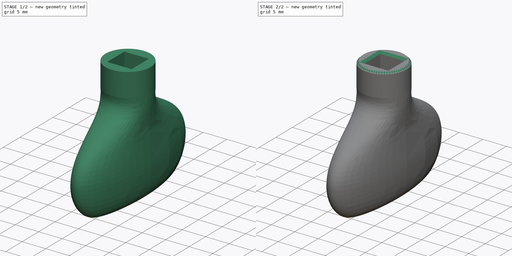
[diagram: build sequence overview — one tinted view per stage of 2, left to right]
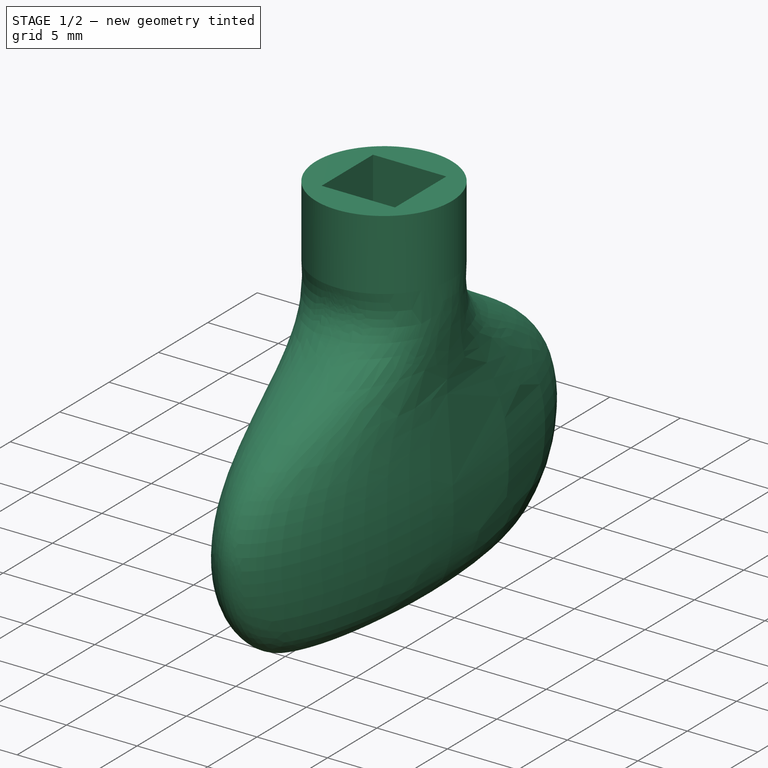
[diagram: stage 1 of 2 — iso view after this stage's code; geometry added in this stage tinted green]
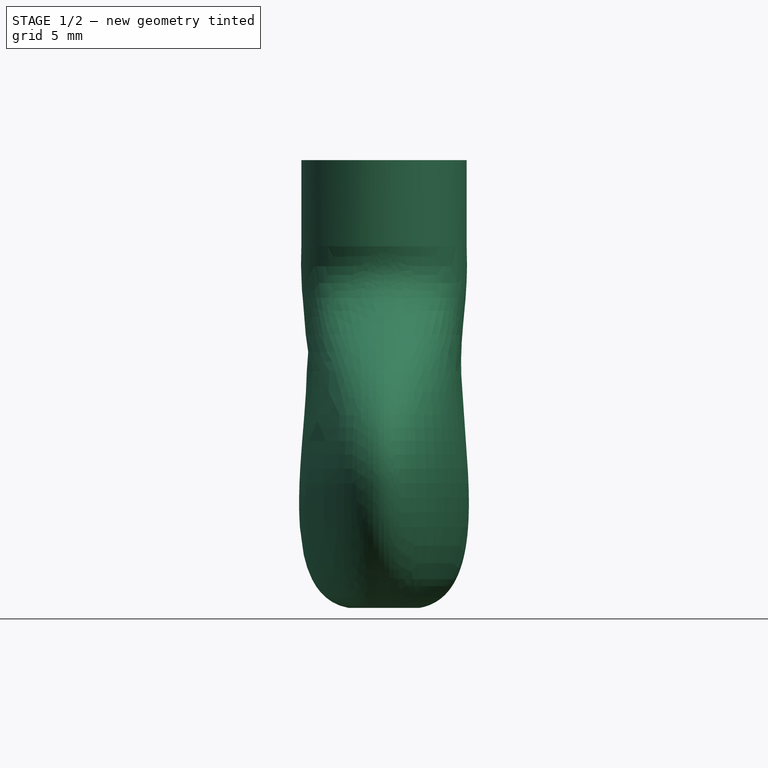
[diagram: stage 1 of 2 — front view after this stage's code; geometry added in this stage tinted green]
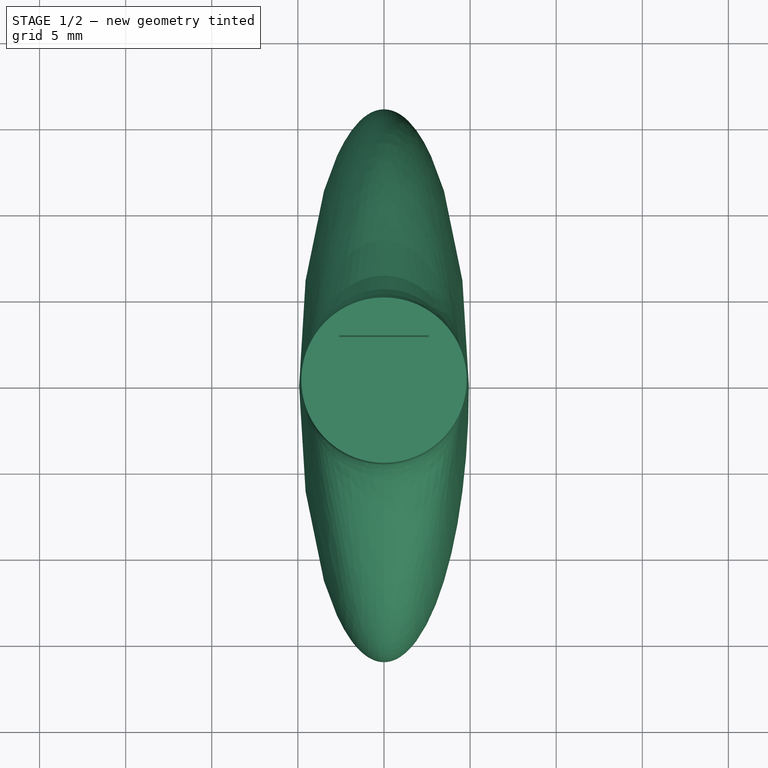
[diagram: stage 1 of 2 — top view after this stage's code; geometry added in this stage tinted green]
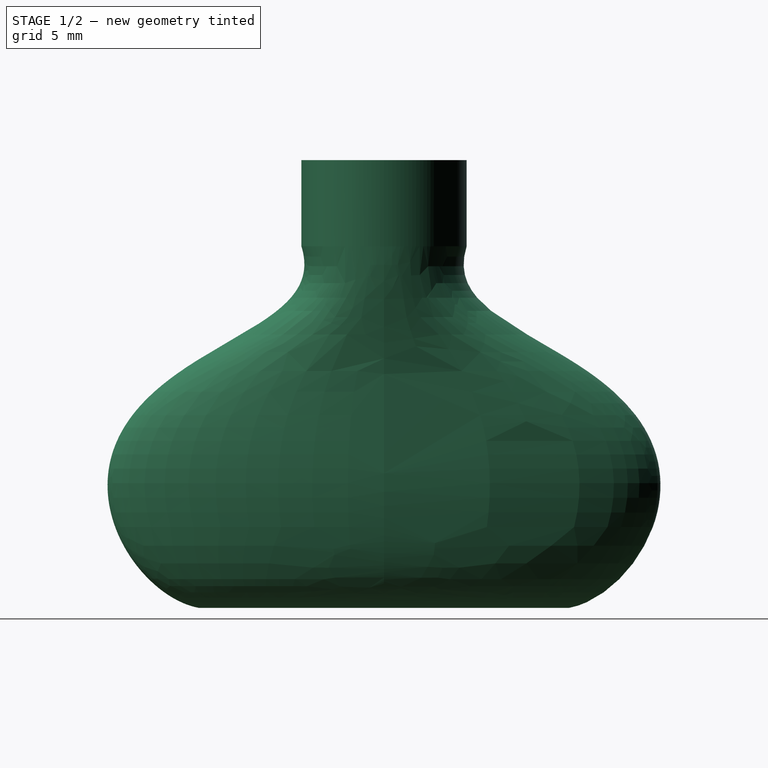
[diagram: stage 1 of 2 — right view after this stage's code; geometry added in this stage tinted green]
FCSTD DOCUMENT  (FreeCAD 1.0R39109 (Git))
Label: RadiatorBleederKey
License: All rights reserved
LicenseURL: http://en.wikipedia.org/wiki/All_rights_reserved
objects: Sketcher::SketchObject×7, PartDesign::AdditiveLoft×1, PartDesign::Pad×1, PartDesign::Chamfer×1, PartDesign::Body×1
note: 24 computed .brp shape members not serialized (recipe doc carries the construction recipe); baked Part::Feature solids carry a one-line shape summary decoded from their .brp

FEATURE [Sketcher::SketchObject] Sketch
  ArcFitTolerance = 0
  AttachmentSupport = -> [XY_Plane]
  FullyConstrained = true
  MakeInternals = false
  MapMode = 5
  sketch-geometry (15):
    g0: Circle CenterX=0 CenterY=0 CenterZ=0 NormalX=0 NormalY=0 NormalZ=1 AngleXU=0 Radius=4.8
    g1: LineSegment StartX=-2.6 StartY=2.6 StartZ=0 EndX=2.6 EndY=2.6 EndZ=0
    g2: LineSegment StartX=2.6 StartY=2.6 StartZ=0 EndX=2.6 EndY=-2.6 EndZ=0
    g3: LineSegment StartX=2.6 StartY=-2.6 StartZ=0 EndX=-2.6 EndY=-2.6 EndZ=0
    g4: LineSegment StartX=-2.6 StartY=-2.6 StartZ=0 EndX=-2.6 EndY=2.6 EndZ=0
    g5: Ellipse CenterX=0 CenterY=0 CenterZ=0 NormalX=0 NormalY=0 NormalZ=1 MajorRadius=14.75 MinorRadius=4.64354 AngleXU=1.5708
    g6: LineSegment StartX=0 StartY=14.75 StartZ=0 EndX=0 EndY=-14.75 EndZ=0
    g7: LineSegment StartX=-4.64354 StartY=0 StartZ=0 EndX=4.64354 EndY=0 EndZ=0
    g8: GeomPoint [constr] X=1.6e-15 Y=14 Z=0
    g9: GeomPoint [constr] X=0 Y=-14 Z=0
    g10: Ellipse CenterX=0 CenterY=0 CenterZ=0 NormalX=0 NormalY=0 NormalZ=1 MajorRadius=10.75 MinorRadius=2.06398 AngleXU=-1.5708
    g11: LineSegment [constr] StartX=0 StartY=-10.75 StartZ=0 EndX=0 EndY=10.75 EndZ=0
    g12: LineSegment [constr] StartX=2.06398 StartY=0 StartZ=0 EndX=-2.06398 EndY=0 EndZ=0
    g13: GeomPoint [constr] X=1.2e-15 Y=-10.55 Z=0
    g14: GeomPoint [constr] X=0 Y=10.55 Z=0
  constraints (23):
    c: Coincident(g0,g-1)
    c: Coincident(g1,g2)
    c: Coincident(g2,g3)
    c: Coincident(g3,g4)
    c: Coincident(g4,g1)
    c: Horizontal(g1)
    c: Horizontal(g3)
    c: Vertical(g2)
    c: Vertical(g4)
    c: Equal(g1,g2)
    c: DistanceX(g1,g1) = 5.2
    c: Symmetric(g3,g1,g0)
    c: Radius(g0) = 4.8
    c: InternalAlignment(g6-g9 -> g5) x4
    c: Coincident(g5,g0)
    c: PointOnObject(g6,g-2)
    c: DistanceY(g0,g8) = 14
    c: DistanceY(g8,g6) = 0.75
    c: InternalAlignment(g11-g14 -> g10) x4
    c: Coincident(g10,g0)
    c: PointOnObject(g11,g6)
    c: DistanceY(g14,g11) = 0.2
    c: DistanceY(g11,g6) = 4
FEATURE [Sketcher::SketchObject] Sketch001
  ArcFitTolerance = 0
  AttachmentOffset = pos=(0,0,3) rot=(0,0,1;0rad)
  AttachmentSupport = -> [XY_Plane]
  ExternalGeometry = -> [Sketch]
  FullyConstrained = true
  MakeInternals = false
  MapMode = 5
  Placement = pos=(0,0,3) rot=(0,0,1;0rad)
  expr: .AttachmentOffset.Base.z = Sketch006.Placement.Base.z + 3 mm
  sketch-geometry (5):
    g0: Ellipse CenterX=0 CenterY=0 CenterZ=0 NormalX=0 NormalY=0 NormalZ=1 MajorRadius=14.75 MinorRadius=4.64354 AngleXU=-1.5708
    g1: LineSegment [constr] StartX=0 StartY=-14.75 StartZ=0 EndX=0 EndY=14.75 EndZ=0
    g2: LineSegment [constr] StartX=4.64354 StartY=0 StartZ=0 EndX=-4.64354 EndY=0 EndZ=0
    g3: GeomPoint [constr] X=1.6e-15 Y=-14 Z=0
    g4: GeomPoint [constr] X=0 Y=14 Z=0
  constraints (4):
    c: InternalAlignment(g1-g4 -> g0) x4
    c: Coincident(g0,g-1)
    c: Coincident(g1,g-3)
    c: Coincident(g2,g-4)
FEATURE [Sketcher::SketchObject] Sketch002
  ArcFitTolerance = 0
  AttachmentOffset = pos=(0,0,19) rot=(0,0,1;0rad)
  AttachmentSupport = -> [XY_Plane]
  ExternalGeometry = -> [Sketch]
  FullyConstrained = true
  MakeInternals = false
  MapMode = 5
  Placement = pos=(0,0,19) rot=(0,0,1;0rad)
  expr: .AttachmentOffset.Base.z = Sketch005.Placement.Base.z + 8 mm
  sketch-geometry (1):
    g0: Circle CenterX=0 CenterY=0 CenterZ=0 NormalX=0 NormalY=0 NormalZ=1 AngleXU=0 Radius=4.8
  constraints (2):
    c: Coincident(g0,g-1)
    c: Equal(g0,g-3)
FEATURE [Sketcher::SketchObject] Sketch003
  ArcFitTolerance = 0
  AttachmentOffset = pos=(0,0,21) rot=(0,0,1;0rad)
  AttachmentSupport = -> [XY_Plane]
  ExternalGeometry = -> [Sketch]
  FullyConstrained = true
  MakeInternals = false
  MapMode = 5
  Placement = pos=(0,0,21) rot=(0,0,1;0rad)
  expr: .AttachmentOffset.Base.z = Sketch004.Placement.Base.z
  sketch-geometry (5):
    g0: Circle CenterX=0 CenterY=0 CenterZ=0 NormalX=0 NormalY=0 NormalZ=1 AngleXU=0 Radius=4.8
    g1: LineSegment StartX=-2.6 StartY=2.6 StartZ=0 EndX=2.6 EndY=2.6 EndZ=0
    g2: LineSegment StartX=2.6 StartY=2.6 StartZ=0 EndX=2.6 EndY=-2.6 EndZ=0
    g3: LineSegment StartX=2.6 StartY=-2.6 StartZ=0 EndX=-2.6 EndY=-2.6 EndZ=0
    g4: LineSegment StartX=-2.6 StartY=-2.6 StartZ=0 EndX=-2.6 EndY=2.6 EndZ=0
  constraints (10):
    c: Coincident(g0,g-1)
    c: Equal(g0,g-3)
    c: Coincident(g1,g2)
    c: Coincident(g2,g3)
    c: Coincident(g3,g4)
    c: Coincident(g4,g1)
    c: Coincident(g1,g-4)
    c: Coincident(g2,g-5)
    c: Coincident(g1,g-4)
    c: Coincident(g3,g-5)
FEATURE [Sketcher::SketchObject] Sketch004
  ArcFitTolerance = 0
  AttachmentOffset = pos=(0,0,21) rot=(0,0,1;0rad)
  AttachmentSupport = -> [XY_Plane]
  ExternalGeometry = -> [Sketch]
  FullyConstrained = true
  MakeInternals = false
  MapMode = 5
  Placement = pos=(0,0,21) rot=(0,0,1;0rad)
  expr: .AttachmentOffset.Base.z = Sketch002.Placement.Base.z + 2 mm
  sketch-geometry (1):
    g0: Circle CenterX=0 CenterY=0 CenterZ=0 NormalX=0 NormalY=0 NormalZ=1 AngleXU=0 Radius=4.8
  constraints (2):
    c: Coincident(g0,g-1)
    c: Equal(g0,g-3)
FEATURE [Sketcher::SketchObject] Sketch005
  ArcFitTolerance = 0
  AttachmentOffset = pos=(0,0,11) rot=(0,0,1;0rad)
  AttachmentSupport = -> [XY_Plane]
  ExternalGeometry = -> [Sketch]
  FullyConstrained = true
  MakeInternals = false
  MapMode = 5
  Placement = pos=(0,0,11) rot=(0,0,1;0rad)
  expr: .AttachmentOffset.Base.z = Sketch001.Placement.Base.z + 8 mm
  sketch-geometry (5):
    g0: Ellipse CenterX=0 CenterY=0 CenterZ=0 NormalX=0 NormalY=0 NormalZ=1 MajorRadius=14.75 MinorRadius=4.64354 AngleXU=-1.5708
    g1: LineSegment [constr] StartX=0 StartY=-14.75 StartZ=0 EndX=0 EndY=14.75 EndZ=0
    g2: LineSegment [constr] StartX=4.64354 StartY=0 StartZ=0 EndX=-4.64354 EndY=0 EndZ=0
    g3: GeomPoint [constr] X=1.6e-15 Y=-14 Z=0
    g4: GeomPoint [constr] X=0 Y=14 Z=0
  constraints (4):
    c: InternalAlignment(g1-g4 -> g0) x4
    c: Coincident(g0,g-1)
    c: Coincident(g1,g-3)
    c: Coincident(g2,g-4)
FEATURE [Sketcher::SketchObject] Sketch006
  ArcFitTolerance = 0
  AttachmentSupport = -> [XY_Plane]
  ExternalGeometry = -> [Sketch]
  FullyConstrained = true
  MakeInternals = false
  MapMode = 5
  sketch-geometry (5):
    g0: Ellipse CenterX=0 CenterY=0 CenterZ=0 NormalX=0 NormalY=0 NormalZ=1 MajorRadius=10.75 MinorRadius=2.06398 AngleXU=-1.5708
    g1: LineSegment [constr] StartX=0 StartY=-10.75 StartZ=0 EndX=0 EndY=10.75 EndZ=0
    g2: LineSegment [constr] StartX=2.06398 StartY=0 StartZ=0 EndX=-2.06398 EndY=0 EndZ=0
    g3: GeomPoint [constr] X=1.2e-15 Y=-10.55 Z=0
    g4: GeomPoint [constr] X=0 Y=10.55 Z=0
  constraints (5):
    c: InternalAlignment(g1-g4 -> g0) x4
    c: Coincident(g0,g-1)
    c: PointOnObject(g1,g-4)
    c: PointOnObject(g1,g-3)
    c: PointOnObject(g2,g-3)
FEATURE [PartDesign::AdditiveLoft] AdditiveLoft
  AllowMultiFace = false
  Closed = false
  Profile = -> Sketch006
  Ruled = false
  Sections = -> [Sketch001,Sketch005,Sketch002,Sketch004]
  Suppressed = false
FEATURE [PartDesign::Pad] Pad
  AllowMultiFace = false
  BaseFeature = -> AdditiveLoft
  Direction = (0,0,1)
  Length = 5
  Length2 = 100
  Profile = -> Sketch003
  Refine = true
  Suppressed = false
  Type = 0
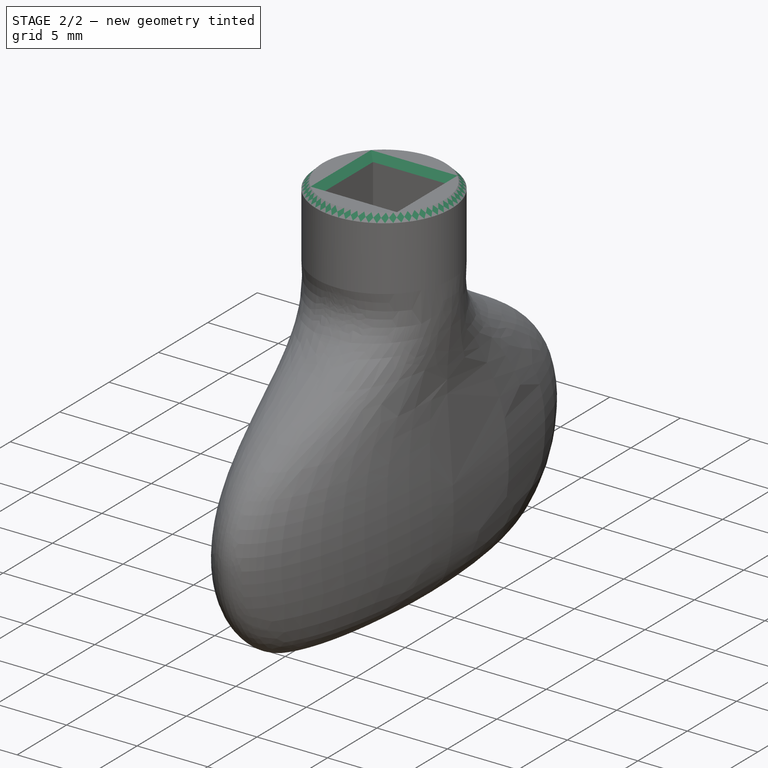
[diagram: stage 2 of 2 — iso view after this stage's code; geometry added in this stage tinted green]
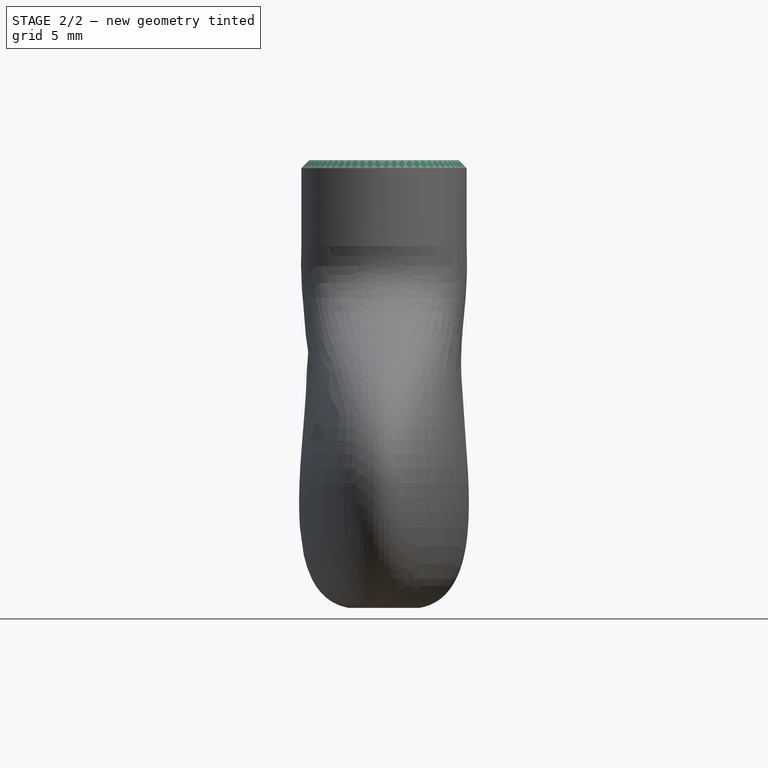
[diagram: stage 2 of 2 — front view after this stage's code; geometry added in this stage tinted green]
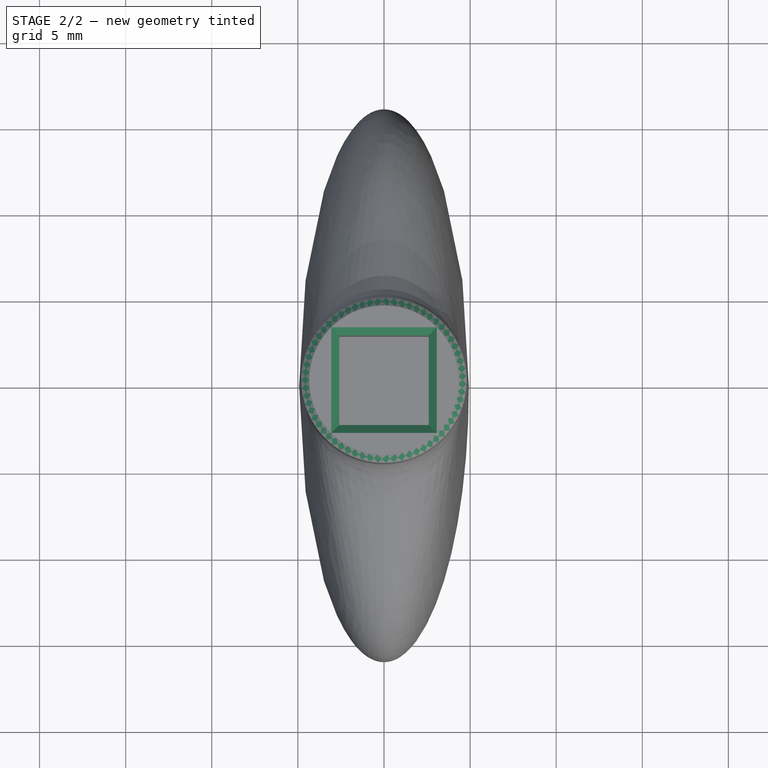
[diagram: stage 2 of 2 — top view after this stage's code; geometry added in this stage tinted green]
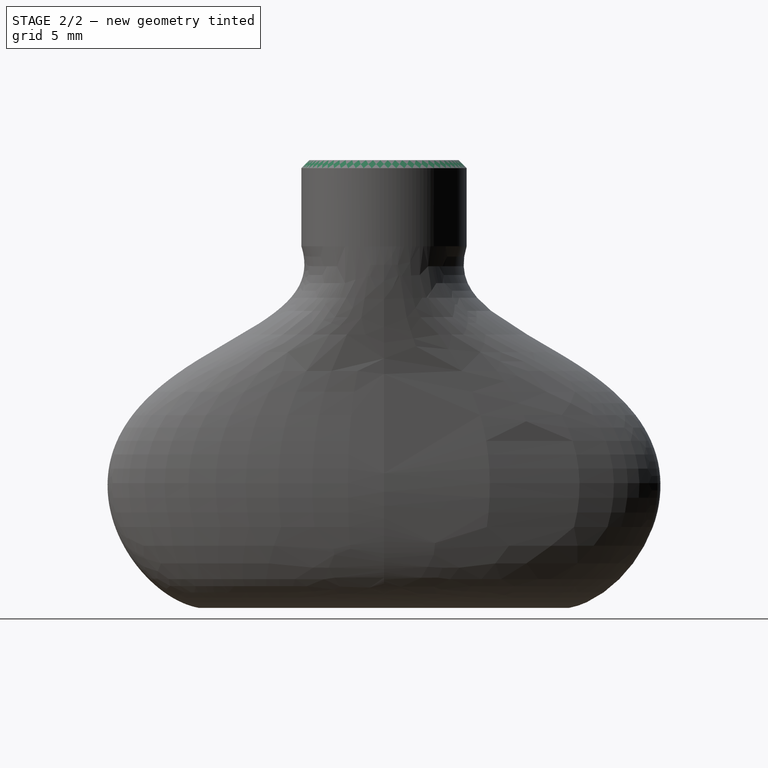
[diagram: stage 2 of 2 — right view after this stage's code; geometry added in this stage tinted green]
FEATURE [PartDesign::Chamfer] Chamfer
  Angle = 45
  Base = -> Pad [Face5]
  BaseFeature = -> Pad
  ChamferType = 0
  FlipDirection = false
  Size = 0.465
  Size2 = 1
  SupportTransform = false
  Suppressed = false
  UseAllEdges = false
FEATURE [PartDesign::Body] Body
  AllowCompound = false
  Group = -> [Sketch,Sketch006,Sketch001,Sketch005,Sketch002,Sketch003,Sketch004,AdditiveLoft,Pad,Chamfer]
  Origin = -> Origin
  Tip = -> Chamfer
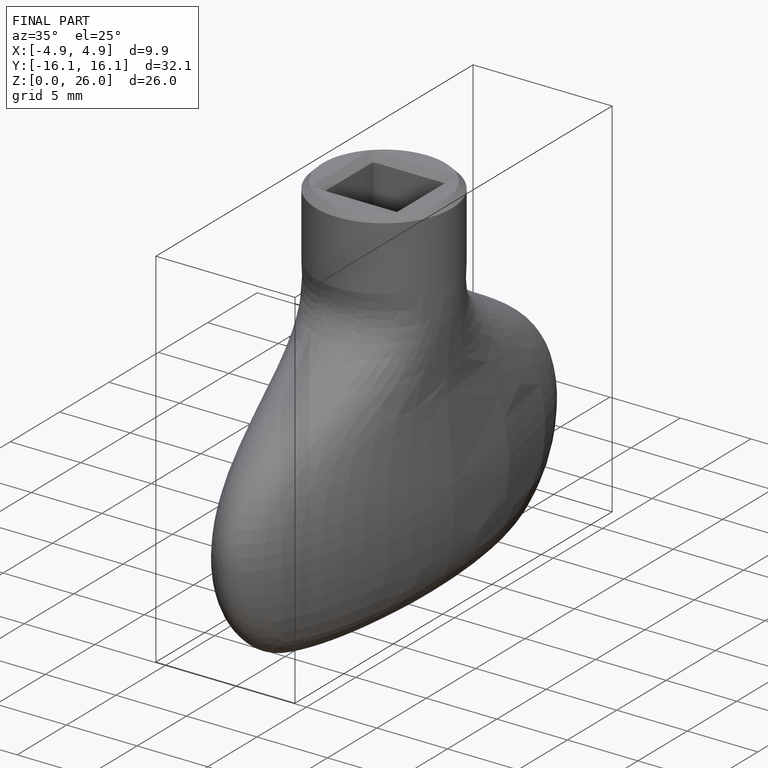
[diagram: finished part — iso view with bounding-box wireframe]
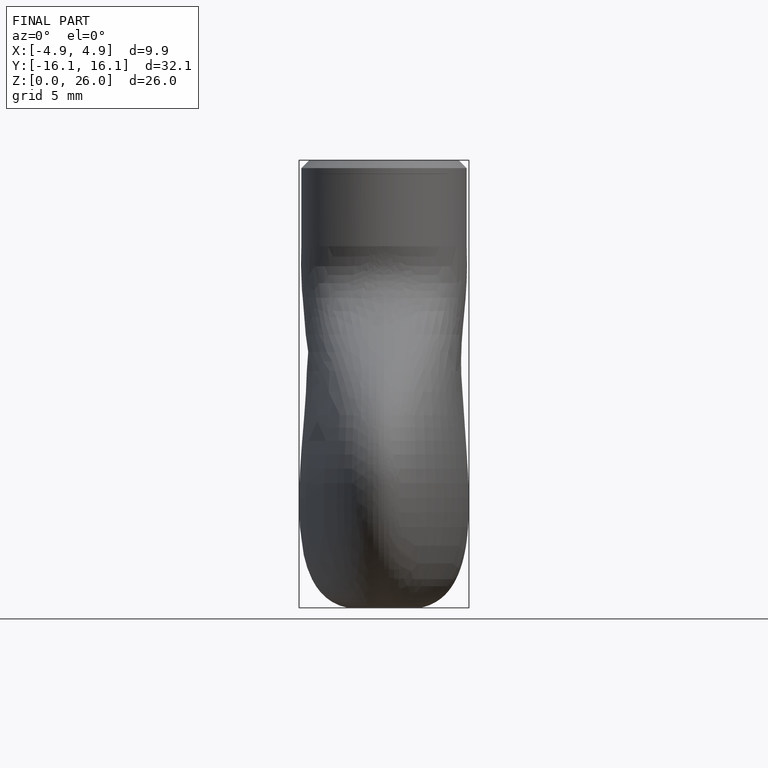
[diagram: finished part — front view with bounding-box wireframe]
